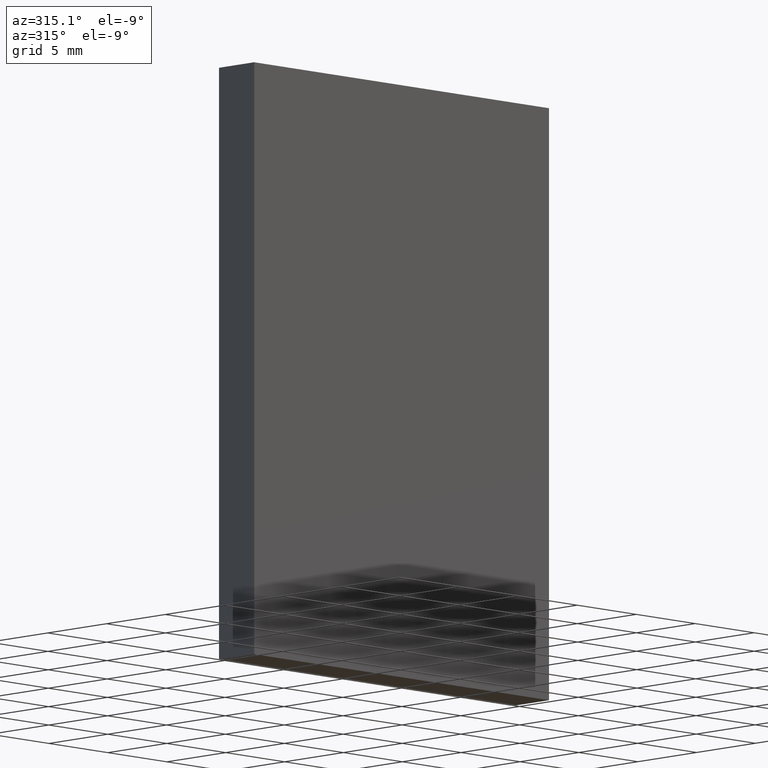
[diagram: clean part render]
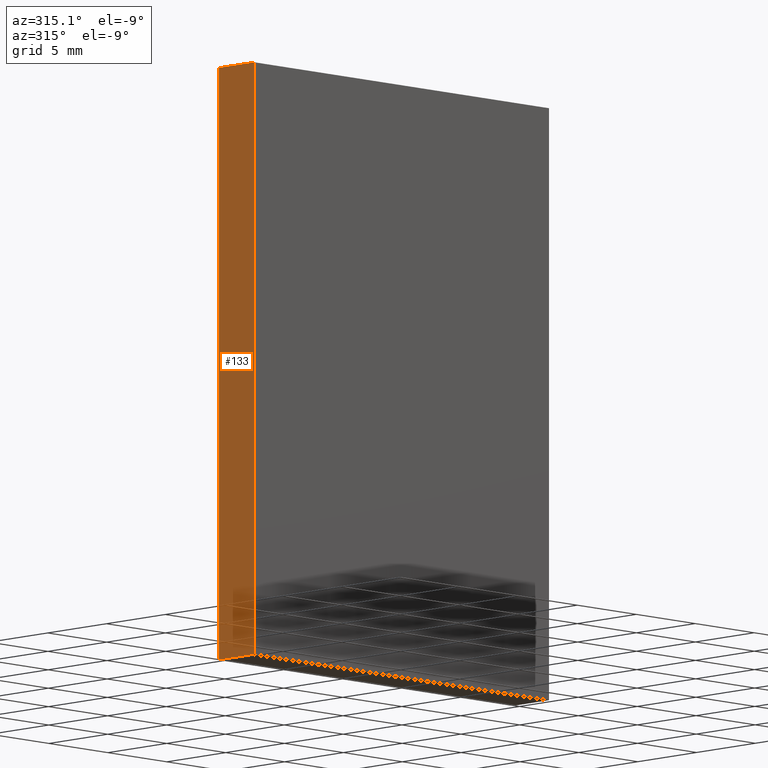
[diagram: same view with one face highlighted and labeled with its STEP entity id]
A machine part, auxiliary view. The second image highlights one B-rep face of the part: STEP entity #133.
In plain terms, the highlighted planar face has unit normal (1, 0, -0).
Its self-contained STEP definition (entity closure, byte-faithful):
#27 = PLANE ( 'NONE',  #198 ) ;
#28 = DIRECTION ( 'NONE',  ( 1.000000000000000000, 0.0000000000000000000, -1.445602896647339400E-016 ) ) ;
#35 = EDGE_CURVE ( 'NONE', #142, #161, #56, .T. ) ;
#37 = VECTOR ( 'NONE', #69, 1000.000000000000000 ) ;
#41 = DIRECTION ( 'NONE',  ( -1.445602896647339400E-016, 0.0000000000000000000, -1.000000000000000000 ) ) ;
#42 = CARTESIAN_POINT ( 'NONE',  ( -12.50000000000000000, 3.000000000000000000, 18.00000000000000400 ) ) ;
#48 = ORIENTED_EDGE ( 'NONE', *, *, #134, .T. ) ;
#50 = CARTESIAN_POINT ( 'NONE',  ( -12.50000000000000500, 3.000000000000000000, -17.99999999999999600 ) ) ;
#51 = LINE ( 'NONE', #50, #192 ) ;
#55 = EDGE_LOOP ( 'NONE', ( #89, #101, #168, #48 ) ) ;
#56 = LINE ( 'NONE', #93, #153 ) ;
#65 = DIRECTION ( 'NONE',  ( -0.0000000000000000000, -1.000000000000000000, -0.0000000000000000000 ) ) ;
#66 = VECTOR ( 'NONE', #65, 1000.000000000000000 ) ;
#69 = DIRECTION ( 'NONE',  ( -0.0000000000000000000, -1.000000000000000000, -0.0000000000000000000 ) ) ;
#79 = LINE ( 'NONE', #42, #66 ) ;
#89 = ORIENTED_EDGE ( 'NONE', *, *, #35, .T. ) ;
#90 = LINE ( 'NONE', #186, #37 ) ;
#91 = VERTEX_POINT ( 'NONE', #96 ) ;
#93 = CARTESIAN_POINT ( 'NONE',  ( -12.50000000000000500, 0.0000000000000000000, -17.99999999999999600 ) ) ;
#94 = CARTESIAN_POINT ( 'NONE',  ( -12.50000000000000000, 0.0000000000000000000, 18.00000000000000400 ) ) ;
#96 = CARTESIAN_POINT ( 'NONE',  ( -12.50000000000000500, 3.000000000000000000, -17.99999999999999600 ) ) ;
#99 = EDGE_CURVE ( 'NONE', #137, #161, #79, .T. ) ;
#101 = ORIENTED_EDGE ( 'NONE', *, *, #99, .F. ) ;
#124 = DIRECTION ( 'NONE',  ( 1.445602896647339400E-016, 0.0000000000000000000, 1.000000000000000000 ) ) ;
#125 = CARTESIAN_POINT ( 'NONE',  ( -12.50000000000000500, 0.0000000000000000000, -17.99999999999999600 ) ) ;
#133 = ADVANCED_FACE ( 'NONE', ( #196 ), #27, .F. ) ;
#134 = EDGE_CURVE ( 'NONE', #91, #142, #90, .T. ) ;
#137 = VERTEX_POINT ( 'NONE', #167 ) ;
#142 = VERTEX_POINT ( 'NONE', #125 ) ;
#150 = DIRECTION ( 'NONE',  ( 1.445602896647339400E-016, 0.0000000000000000000, 1.000000000000000000 ) ) ;
#153 = VECTOR ( 'NONE', #124, 1000.000000000000000 ) ;
#156 = EDGE_CURVE ( 'NONE', #91, #137, #51, .T. ) ;
#161 = VERTEX_POINT ( 'NONE', #94 ) ;
#163 = CARTESIAN_POINT ( 'NONE',  ( -12.50000000000000500, 3.000000000000000000, -17.99999999999999600 ) ) ;
#167 = CARTESIAN_POINT ( 'NONE',  ( -12.50000000000000000, 3.000000000000000000, 18.00000000000000400 ) ) ;
#168 = ORIENTED_EDGE ( 'NONE', *, *, #156, .F. ) ;
#186 = CARTESIAN_POINT ( 'NONE',  ( -12.50000000000000500, 3.000000000000000000, -17.99999999999999600 ) ) ;
#192 = VECTOR ( 'NONE', #150, 1000.000000000000000 ) ;
#196 = FACE_OUTER_BOUND ( 'NONE', #55, .T. ) ;
#198 = AXIS2_PLACEMENT_3D ( 'NONE', #163, #28, #41 ) ;